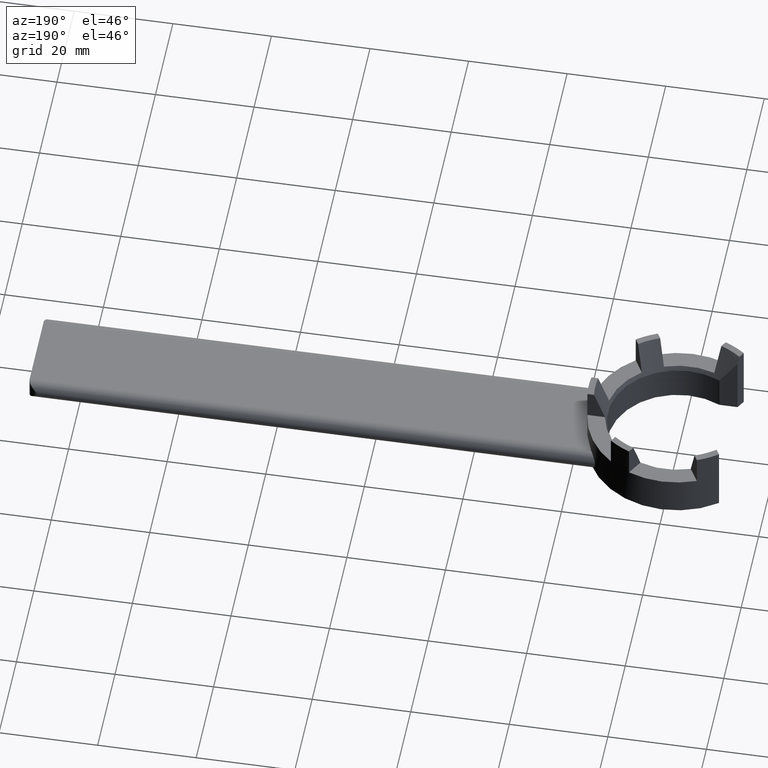
[diagram: clean part render]
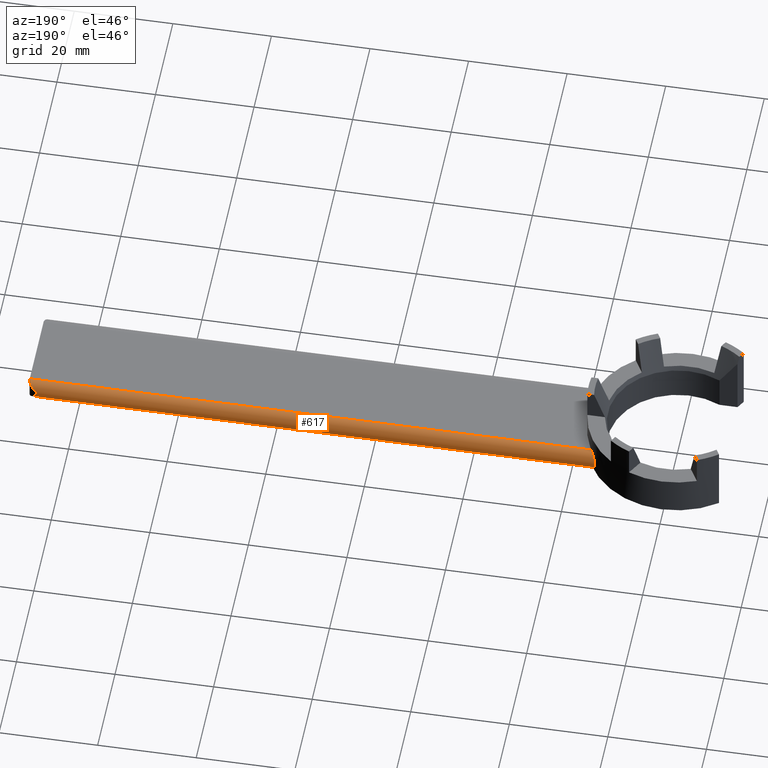
[diagram: same view with one face highlighted and labeled with its STEP entity id]
A machine part, auxiliary view. The second image highlights one B-rep face of the part: STEP entity #617.
In plain terms, the highlighted cylindrical surface (edge-blend (fillet) strip) has radius 2 mm, axis along (1, -0, 0).
Its self-contained STEP definition (entity closure, byte-faithful):
#133=B_SPLINE_CURVE_WITH_KNOTS('',3,(#995,#996,#997,#998,#999,#1000,#1001,
#1002,#1003,#1004,#1005,#1006,#1007,#1008,#1009,#1010,#1011,#1012,#1013,
#1014,#1015,#1016,#1017,#1018,#1019,#1020,#1021,#1022,#1023,#1024,#1025,
#1026,#1027,#1028,#1029,#1030,#1031,#1032,#1033,#1034,#1035,#1036,#1037,
#1038,#1039,#1040,#1041,#1042,#1043,#1044,#1045),.UNSPECIFIED.,.F.,.U.,
(4,2,2,2,2,2,2,2,2,2,2,2,3,2,2,2,2,2,2,2,2,2,2,2,4),(-4.90048405148318,
-4.48668927783599,-4.07289450418879,-3.6590997305416,-3.24530495689441,
-2.8108067431109,-2.3763085293274,-1.94181031554389,-1.50731210176039,-1.13048407632029,
-0.753656050880194,-0.376828025440098,0.,0.376828025440097,0.753656050880194,
1.13048407632029,1.50731210176039,1.94181031554389,2.3763085293274,2.8108067431109,
3.24530495689441,3.6590997305416,4.07289450418879,4.48668927783599,4.90048405148318),
 .UNSPECIFIED.);
#136=ELLIPSE('',#1111,2.82842712474619,2.);
#137=ELLIPSE('',#1112,2.82842712474619,2.);
#165=VERTEX_POINT('',#908);
#166=VERTEX_POINT('',#911);
#175=VERTEX_POINT('',#933);
#191=VERTEX_POINT('',#994);
#192=VERTEX_POINT('',#1046);
#206=VECTOR('',#691,1.);
#233=VECTOR('',#742,1.);
#250=LINE('',#934,#206);
#277=LINE('',#1047,#233);
#323=EDGE_CURVE('',#175,#166,#250,.T.);
#353=EDGE_CURVE('',#166,#191,#136,.T.);
#354=EDGE_CURVE('',#192,#175,#133,.T.);
#355=EDGE_CURVE('',#165,#192,#277,.F.);
#356=EDGE_CURVE('',#191,#165,#137,.T.);
#464=ORIENTED_EDGE('',*,*,#353,.F.);
#465=ORIENTED_EDGE('',*,*,#323,.F.);
#466=ORIENTED_EDGE('',*,*,#354,.F.);
#467=ORIENTED_EDGE('',*,*,#355,.F.);
#468=ORIENTED_EDGE('',*,*,#356,.F.);
#555=EDGE_LOOP('',(#464,#465,#466,#467,#468));
#586=FACE_BOUND('',#555,.T.);
#617=ADVANCED_FACE('',(#586),#632,.T.);
#632=CYLINDRICAL_SURFACE('',#1110,2.);
#691=DIRECTION('',(1.,-1.20641408255495E-16,0.));
#738=DIRECTION('',(1.,-1.20641408255495E-16,0.));
#739=DIRECTION('',(-2.4128281651099E-16,-2.,0.));
#740=DIRECTION('',(0.707106781186548,0.,0.707106781186548));
#741=DIRECTION('',(2.,-2.4128281651099E-16,-2.));
#742=DIRECTION('',(1.,-1.20641408255495E-16,0.));
#743=DIRECTION('',(0.707106781186548,0.,-0.707106781186548));
#744=DIRECTION('',(-2.,2.4128281651099E-16,-2.));
#908=CARTESIAN_POINT('',(130.,8.,4.));
#911=CARTESIAN_POINT('',(130.,8.,0.));
#933=CARTESIAN_POINT('',(16.1245154965971,8.,0.));
#934=CARTESIAN_POINT('',(9.65131266043964E-16,8.,0.));
#992=CARTESIAN_POINT('',(9.65131266043964E-16,8.,2.));
#993=CARTESIAN_POINT('',(128.,7.99999999999998,2.));
#994=CARTESIAN_POINT('',(128.,9.99999999999999,2.));
#995=CARTESIAN_POINT('',(16.760624485494,6.56364737446032,3.39172236279557));
#996=CARTESIAN_POINT('',(16.7243595686284,6.65625177852192,3.48729643882265));
#997=CARTESIAN_POINT('',(16.6825997733629,6.76060484163535,3.57561343472825));
#998=CARTESIAN_POINT('',(16.5893352761082,6.98633438365315,3.72949127548237));
#999=CARTESIAN_POINT('',(16.537818913221,7.10769571233122,3.79506727623014));
#1000=CARTESIAN_POINT('',(16.4276434053178,7.35875838412927,3.89928475920682));
#1001=CARTESIAN_POINT('',(16.3688930790613,7.48864099601115,3.93801333035006));
#1002=CARTESIAN_POINT('',(16.2479820182196,7.7474824902426,3.98837084236494));
#1003=CARTESIAN_POINT('',(16.1858184260263,7.87643999555398,4.));
#1004=CARTESIAN_POINT('',(16.0601453908514,8.12974209595177,4.));
#1005=CARTESIAN_POINT('',(15.9918359970217,8.26339333019214,3.98719329475015));
#1006=CARTESIAN_POINT('',(15.8519396751242,8.52868667622915,3.93359862314446));
#1007=CARTESIAN_POINT('',(15.7803532997598,8.66033388598172,3.89283445170515));
#1008=CARTESIAN_POINT('',(15.6391003786182,8.91288239767726,3.78479936976624));
#1009=CARTESIAN_POINT('',(15.5693625892678,9.03393070825489,3.71747339432946));
#1010=CARTESIAN_POINT('',(15.4370358562117,9.25823306315735,3.56063356625392));
#1011=CARTESIAN_POINT('',(15.3744655035193,9.36148500589545,3.47110102382105));
#1012=CARTESIAN_POINT('',(15.2688881951538,9.53256374747719,3.29020211660532));
#1013=CARTESIAN_POINT('',(15.2211113588749,9.60855085149375,3.19501362775607));
#1014=CARTESIAN_POINT('',(15.1345596257653,9.74431041169599,2.98634405721943));
#1015=CARTESIAN_POINT('',(15.0958041343973,9.80408388922262,2.87285559155371));
#1016=CARTESIAN_POINT('',(15.0323146786992,9.90115543396104,2.63419502403105));
#1017=CARTESIAN_POINT('',(15.0075438685197,9.9385364968227,2.5087759292986));
#1018=CARTESIAN_POINT('',(14.9746917121144,9.98796720019752,2.25448596368868));
#1019=CARTESIAN_POINT('',(14.9666295470958,10.,2.12560934181337));
#1020=CARTESIAN_POINT('',(14.9666295470958,10.,2.));
#1021=CARTESIAN_POINT('',(14.9666295470958,10.,1.87439065818663));
#1022=CARTESIAN_POINT('',(14.9746917121144,9.98796720019752,1.74551403631132));
#1023=CARTESIAN_POINT('',(15.0075438685197,9.9385364968227,1.4912240707014));
#1024=CARTESIAN_POINT('',(15.0323146786992,9.90115543396104,1.36580497596895));
#1025=CARTESIAN_POINT('',(15.0958041343973,9.80408388922262,1.12714440844629));
#1026=CARTESIAN_POINT('',(15.1345596257653,9.74431041169599,1.01365594278057));
#1027=CARTESIAN_POINT('',(15.2211113588749,9.60855085149375,0.804986372243934));
#1028=CARTESIAN_POINT('',(15.2688881951538,9.53256374747719,0.709797883394679));
#1029=CARTESIAN_POINT('',(15.3744655035193,9.36148500589545,0.528898976178951));
#1030=CARTESIAN_POINT('',(15.4370358562117,9.25823306315735,0.439366433746084));
#1031=CARTESIAN_POINT('',(15.5693625892678,9.03393070825489,0.282526605670538));
#1032=CARTESIAN_POINT('',(15.6391003786182,8.91288239767726,0.215200630233764));
#1033=CARTESIAN_POINT('',(15.7803532997598,8.66033388598171,0.107165548294847));
#1034=CARTESIAN_POINT('',(15.8519396751242,8.52868667622915,0.0664013768555436));
#1035=CARTESIAN_POINT('',(15.9918359970217,8.26339333019214,0.0128067052498531));
#1036=CARTESIAN_POINT('',(16.0601453908514,8.12974209595177,1.09584986081197E-17));
#1037=CARTESIAN_POINT('',(16.1858184260263,7.87643999555398,-1.04363362315671E-17));
#1038=CARTESIAN_POINT('',(16.2479820182196,7.7474824902426,0.0116291576350602));
#1039=CARTESIAN_POINT('',(16.3688930790613,7.48864099601115,0.0619866696499363));
#1040=CARTESIAN_POINT('',(16.4276434053178,7.35875838412927,0.100715240793177));
#1041=CARTESIAN_POINT('',(16.537818913221,7.10769571233122,0.204932723769857));
#1042=CARTESIAN_POINT('',(16.5893352761082,6.98633438365315,0.270508724517629));
#1043=CARTESIAN_POINT('',(16.6825997733629,6.76060484163535,0.424386565271753));
#1044=CARTESIAN_POINT('',(16.7243595686284,6.65625177852192,0.512703561177352));
#1045=CARTESIAN_POINT('',(16.760624485494,6.56364737446032,0.608277637204431));
#1046=CARTESIAN_POINT('',(16.1245154965971,8.,4.));
#1047=CARTESIAN_POINT('',(1.37074405272211E-15,8.,4.));
#1048=CARTESIAN_POINT('',(128.,7.99999999999998,2.));
#1110=AXIS2_PLACEMENT_3D('',#992,#738,#739);
#1111=AXIS2_PLACEMENT_3D('',#993,#740,#741);
#1112=AXIS2_PLACEMENT_3D('',#1048,#743,#744);